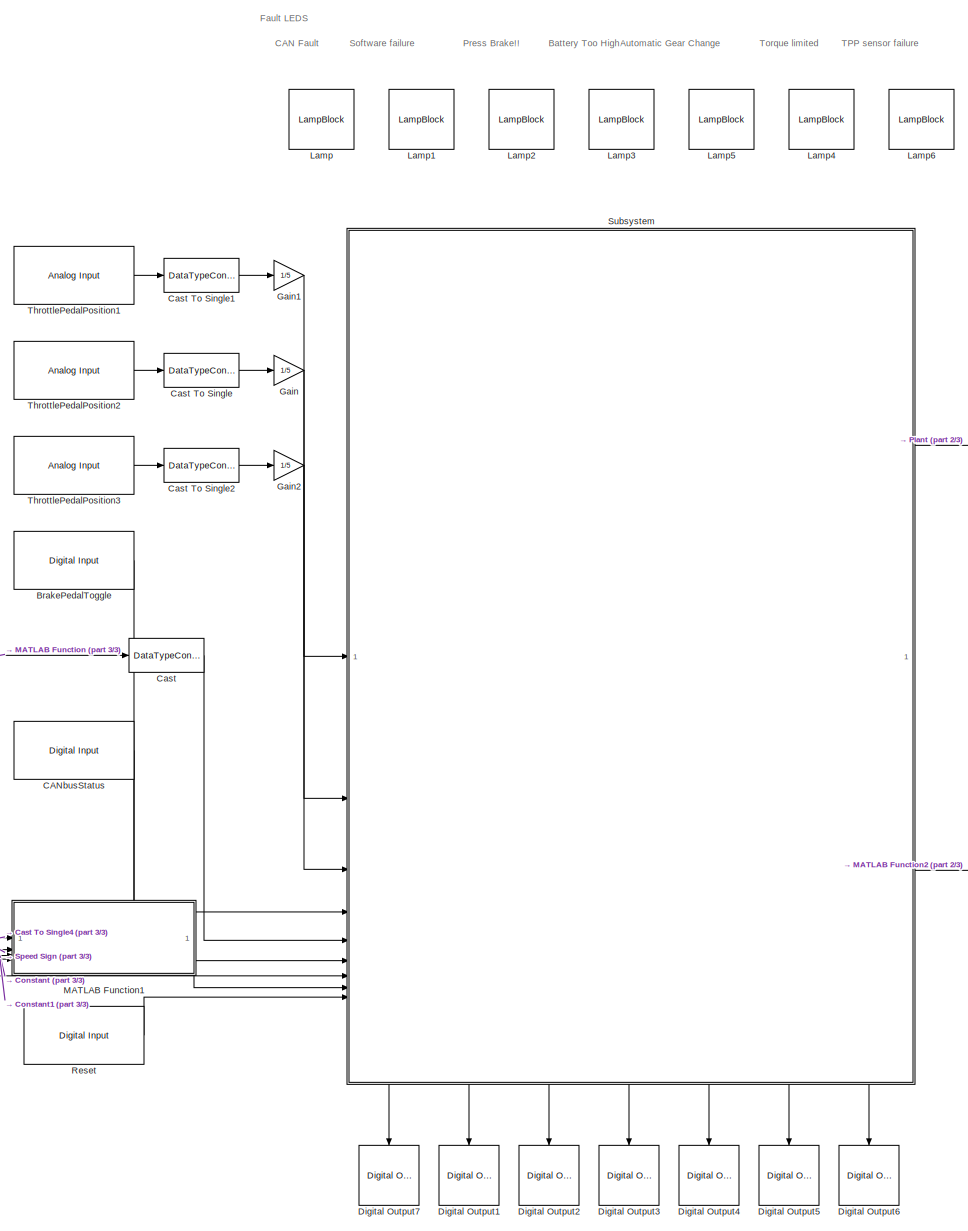
[diagram: root canvas - part 1/3, center side, full height]
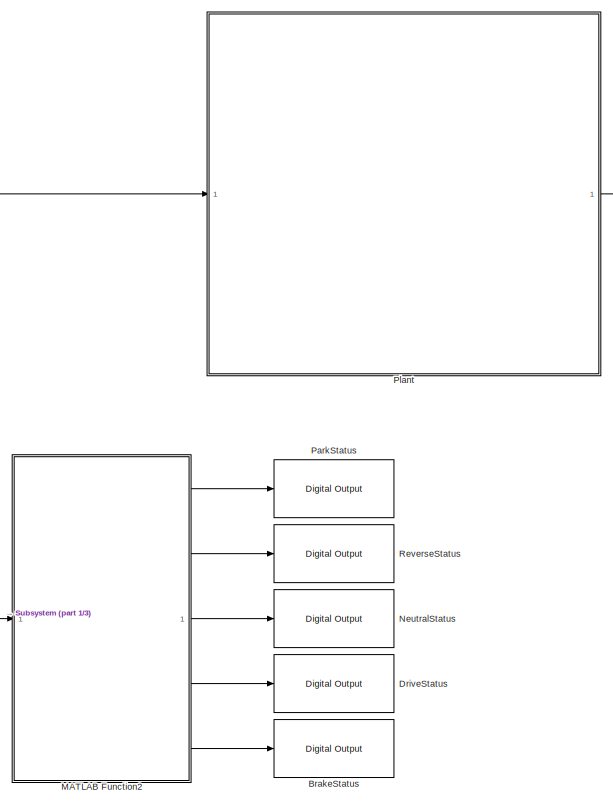
[diagram: root canvas - part 2/3, middle right region]
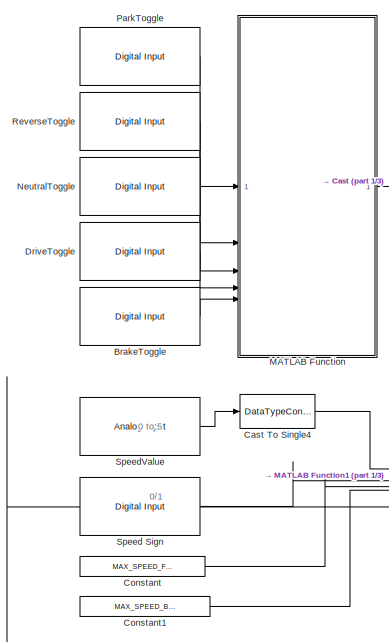
[diagram: root canvas - part 3/3, middle left region]
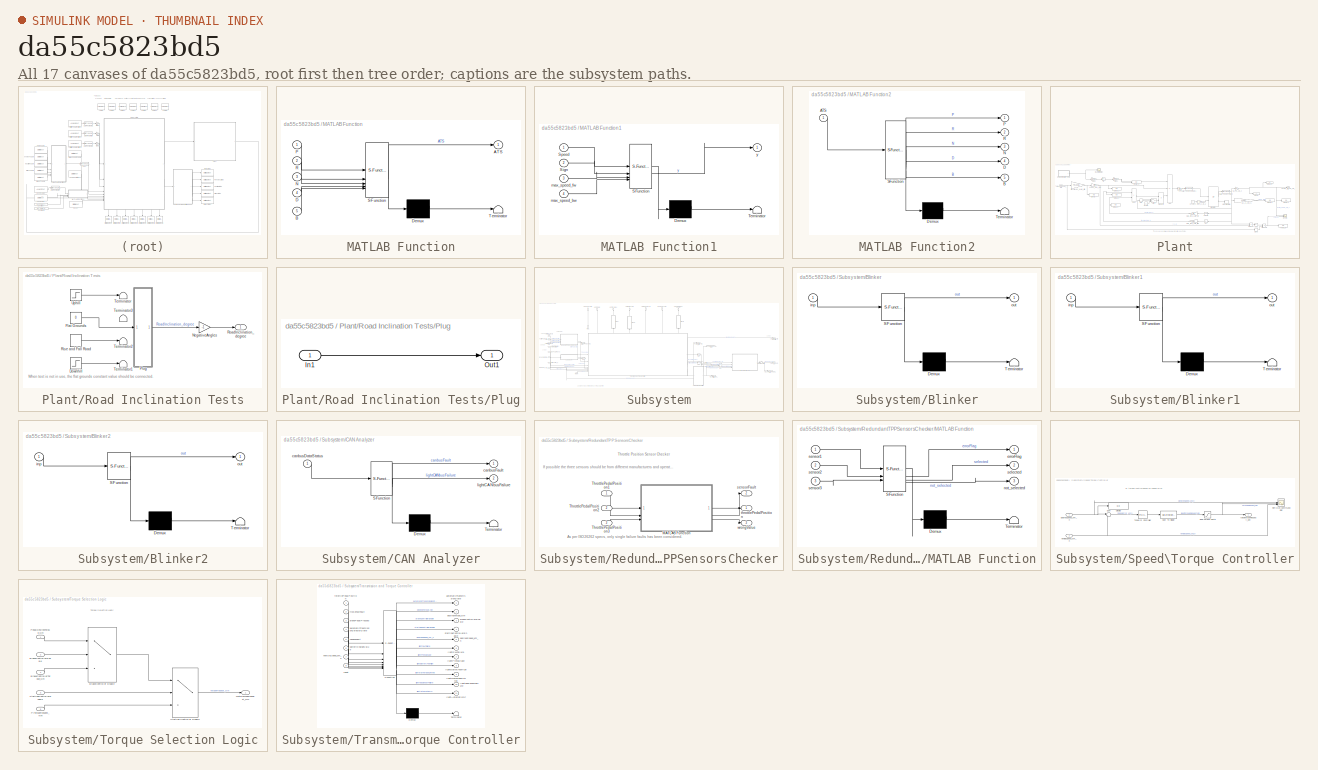
[diagram: thumbnail index - all 17 canvases of the model, root first then tree order]
MODEL slx_da55c5823bd5
KIND model
CONFIG AbsTol = auto
CONFIG EnableMultiTasking = on
CONFIG FixedStep = auto
CONFIG InitFcn = init_fn()
CONFIG MaxStep = auto
CONFIG MinStep = auto
CONFIG RelTol = 1e-3
CONFIG SampleTimeConstraint = Unconstrained
CONFIG SolverName = FixedStepAuto
CONFIG StartTime = 0.0
CONFIG StopTime = 100.0
BLOCK [Reference] BrakePedalToggle  REF=arduinolib/Digital Input
  SourceBlock = arduinolib/Digital Input
  SourceType = Arduino Digital Input
BLOCK [Reference] BrakeStatus  REF=arduinolib/Digital Output
  NameLocation = right
  SourceBlock = arduinolib/Digital Output
  SourceType = Arduino Digital Output
BLOCK [Reference] BrakeToggle  REF=arduinolib/Digital Input
  NameLocation = left
  SourceBlock = arduinolib/Digital Input
  SourceType = Arduino Digital Input
BLOCK [Reference] CANbusStatus  REF=arduinolib/Digital Input
  SourceBlock = arduinolib/Digital Input
  SourceType = Arduino Digital Input
BLOCK [DataTypeConversion] Cast
  OutDataTypeStr = Enum: TransmissionState
  RndMeth = Floor
  SaturateOnIntegerOverflow = off
BLOCK [DataTypeConversion] Cast To Single
  OutDataTypeStr = single
  RndMeth = Floor
  SaturateOnIntegerOverflow = off
BLOCK [DataTypeConversion] Cast To Single1
  OutDataTypeStr = single
  RndMeth = Floor
  SaturateOnIntegerOverflow = off
BLOCK [DataTypeConversion] Cast To Single2
  OutDataTypeStr = single
  RndMeth = Floor
  SaturateOnIntegerOverflow = off
BLOCK [DataTypeConversion] Cast To Single4
  OutDataTypeStr = single
  RndMeth = Floor
  SaturateOnIntegerOverflow = off
BLOCK [Constant] Constant
  OutDataTypeStr = single
  Value = MAX_SPEED_FORWARD
BLOCK [Constant] Constant1
  OutDataTypeStr = single
  Value = MAX_SPEED_BACKWARD
BLOCK [Reference] Digital Output1  REF=arduinolib/Digital Output
  SourceBlock = arduinolib/Digital Output
  SourceType = Arduino Digital Output
BLOCK [Reference] Digital Output2  REF=arduinolib/Digital Output
  SourceBlock = arduinolib/Digital Output
  SourceType = Arduino Digital Output
BLOCK [Reference] Digital Output3  REF=arduinolib/Digital Output
  SourceBlock = arduinolib/Digital Output
  SourceType = Arduino Digital Output
BLOCK [Reference] Digital Output4  REF=arduinolib/Digital Output
  SourceBlock = arduinolib/Digital Output
  SourceType = Arduino Digital Output
BLOCK [Reference] Digital Output5  REF=arduinolib/Digital Output
  SourceBlock = arduinolib/Digital Output
  SourceType = Arduino Digital Output
BLOCK [Reference] Digital Output6  REF=arduinolib/Digital Output
  SourceBlock = arduinolib/Digital Output
  SourceType = Arduino Digital Output
BLOCK [Reference] Digital Output7  REF=arduinolib/Digital Output
  SourceBlock = arduinolib/Digital Output
  SourceType = Arduino Digital Output
BLOCK [Reference] DriveStatus  REF=arduinolib/Digital Output
  NameLocation = right
  SourceBlock = arduinolib/Digital Output
  SourceType = Arduino Digital Output
BLOCK [Reference] DriveToggle  REF=arduinolib/Digital Input
  NameLocation = left
  SourceBlock = arduinolib/Digital Input
  SourceType = Arduino Digital Input
BLOCK [Gain] Gain
  Gain = 1/5
BLOCK [Gain] Gain1
  Gain = 1/5
BLOCK [Gain] Gain2
  Gain = 1/5
BLOCK [LampBlock] Lamp
  LabelPosition = Hide
BLOCK [LampBlock] Lamp1
  LabelPosition = Hide
BLOCK [LampBlock] Lamp2
  LabelPosition = Hide
BLOCK [LampBlock] Lamp3
  LabelPosition = Hide
BLOCK [LampBlock] Lamp4
  LabelPosition = Hide
BLOCK [LampBlock] Lamp5
  LabelPosition = Hide
BLOCK [LampBlock] Lamp6
  LabelPosition = Hide
BLOCK [SubSystem] MATLAB Function
  ErrorFcn = Stateflow.Translate.translate
  LibrarySourceBlock = simulink/User-Defined\nFunctions/MATLAB Function
  PermitHierarchicalResolution = ExplicitOnly
  SFBlockType = MATLAB Function
  TreatAsAtomicUnit = on
BLOCK [Demux] MATLAB Function/ Demux 
  Outputs = 1
BLOCK [S-Function] MATLAB Function/ SFunction 
  EnableBusSupport = on
  FunctionName = sf_sfun
  PortCounts = [5 2]
  SFcnIsStateOwnerBlock = off
  SFunctionDeploymentMode = off
  Tag = Stateflow S-Function 2
BLOCK [Terminator] MATLAB Function/ Terminator 
BLOCK [Outport] MATLAB Function/ATS
BLOCK [Inport] MATLAB Function/B
  Port = 5
BLOCK [Inport] MATLAB Function/D
  Port = 4
BLOCK [Inport] MATLAB Function/N
  Port = 3
BLOCK [Inport] MATLAB Function/P
BLOCK [Inport] MATLAB Function/R
  Port = 2
BLOCK [SubSystem] MATLAB Function1
  ErrorFcn = Stateflow.Translate.translate
  LibrarySourceBlock = simulink/User-Defined\nFunctions/MATLAB Function
  PermitHierarchicalResolution = ExplicitOnly
  SFBlockType = MATLAB Function
  TreatAsAtomicUnit = on
BLOCK [Demux] MATLAB Function1/ Demux 
  Outputs = 1
BLOCK [S-Function] MATLAB Function1/ SFunction 
  EnableBusSupport = on
  FunctionName = sf_sfun
  PortCounts = [4 2]
  SFcnIsStateOwnerBlock = off
  SFunctionDeploymentMode = off
  Tag = Stateflow S-Function 1
BLOCK [Terminator] MATLAB Function1/ Terminator 
BLOCK [Inport] MATLAB Function1/Sign
  Port = 2
BLOCK [Inport] MATLAB Function1/Speed
BLOCK [Inport] MATLAB Function1/max_speed_bw
  Port = 4
BLOCK [Inport] MATLAB Function1/max_speed_fw
  Port = 3
BLOCK [Outport] MATLAB Function1/y
BLOCK [SubSystem] MATLAB Function2
  ErrorFcn = Stateflow.Translate.translate
  LibrarySourceBlock = simulink/User-Defined\nFunctions/MATLAB Function
  PermitHierarchicalResolution = ExplicitOnly
  SFBlockType = MATLAB Function
  TreatAsAtomicUnit = on
BLOCK [Demux] MATLAB Function2/ Demux 
  Outputs = 1
BLOCK [S-Function] MATLAB Function2/ SFunction 
  EnableBusSupport = on
  FunctionName = sf_sfun
  PortCounts = [1 6]
  SFcnIsStateOwnerBlock = off
  SFunctionDeploymentMode = off
  Tag = Stateflow S-Function 3
BLOCK [Terminator] MATLAB Function2/ Terminator 
BLOCK [Inport] MATLAB Function2/ATS
BLOCK [Outport] MATLAB Function2/B
  Port = 5
BLOCK [Outport] MATLAB Function2/D
  Port = 4
BLOCK [Outport] MATLAB Function2/N
  Port = 3
BLOCK [Outport] MATLAB Function2/P
BLOCK [Outport] MATLAB Function2/R
  Port = 2
BLOCK [Reference] NeutralStatus  REF=arduinolib/Digital Output
  NameLocation = right
  SourceBlock = arduinolib/Digital Output
  SourceType = Arduino Digital Output
BLOCK [Reference] NeutralToggle  REF=arduinolib/Digital Input
  NameLocation = left
  SourceBlock = arduinolib/Digital Input
  SourceType = Arduino Digital Input
BLOCK [Reference] ParkStatus  REF=arduinolib/Digital Output
  NameLocation = right
  SourceBlock = arduinolib/Digital Output
  SourceType = Arduino Digital Output
BLOCK [Reference] ParkToggle  REF=arduinolib/Digital Input
  NameLocation = left
  SourceBlock = arduinolib/Digital Input
  SourceType = Arduino Digital Input
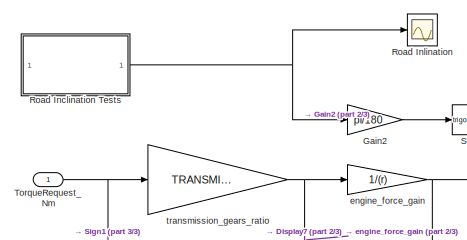
[diagram: Plant - part 1/3, top left region]
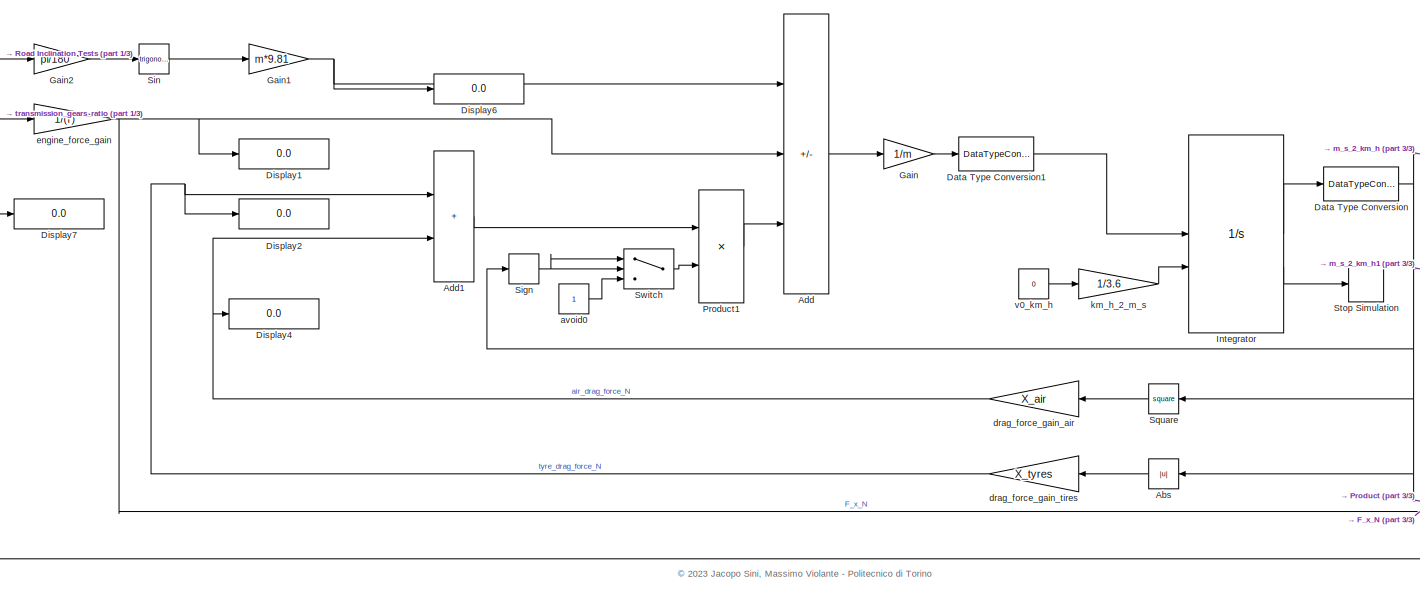
[diagram: Plant - part 2/3, center side, full height]
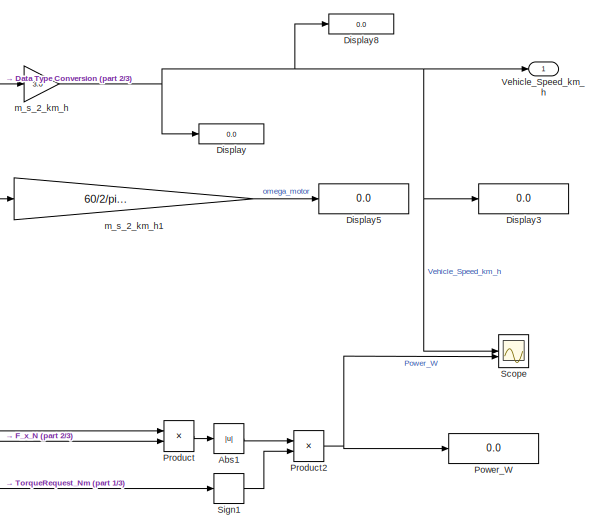
[diagram: Plant - part 3/3, right side, full height]
BLOCK [SubSystem] Plant
BLOCK [Abs] Plant/Abs
  NameLocation = top
  SaturateOnIntegerOverflow = off
BLOCK [Abs] Plant/Abs1
  SaturateOnIntegerOverflow = off
BLOCK [Sum] Plant/Add
  IconShape = rectangular
  Inputs = ++-
BLOCK [Sum] Plant/Add1
  IconShape = rectangular
BLOCK [DataTypeConversion] Plant/Data Type Conversion
  LockScale = on
  OutDataTypeStr = single
  RndMeth = Floor
  SaturateOnIntegerOverflow = off
BLOCK [DataTypeConversion] Plant/Data Type Conversion1
  LockScale = on
  OutDataTypeStr = double
  RndMeth = Floor
  SaturateOnIntegerOverflow = off
BLOCK [Display] Plant/Display
  Decimation = 1
BLOCK [Display] Plant/Display1
  Decimation = 1
  Format = bank
BLOCK [Display] Plant/Display2
  Decimation = 1
  Format = bank
BLOCK [Display] Plant/Display3
  Decimation = 1
  Format = bank
BLOCK [Display] Plant/Display4
  Decimation = 1
  Format = bank
BLOCK [Display] Plant/Display5
  Decimation = 1
  Format = bank
BLOCK [Display] Plant/Display6
  Decimation = 1
  Format = bank
BLOCK [Display] Plant/Display7
  Decimation = 1
  Format = bank
BLOCK [Display] Plant/Display8
  Decimation = 1
BLOCK [Gain] Plant/Gain
  Gain = 1/m
BLOCK [Gain] Plant/Gain1
  Gain = m*9.81
BLOCK [Gain] Plant/Gain2
  Gain = pi/180
BLOCK [Integrator] Plant/Integrator
  ContinuousStateAttributes = 'vehicle_speed'
  InitialConditionSource = external
  LimitOutput = on
  LowerSaturationLimit = -MAX_SPEED_BACKWARD/3.6
  ShowSaturationPort = on
  UpperSaturationLimit = MAX_SPEED_FORWARD/3.6
BLOCK [Display] Plant/Power_W
  Decimation = 1
  Format = bank
BLOCK [Product] Plant/Product
BLOCK [Product] Plant/Product1
BLOCK [Product] Plant/Product2
BLOCK [SubSystem] Plant/Road Inclination Tests
BLOCK [Step] Plant/Road Inclination Tests/Downhill
  After = -4
  SampleTime = 0
  Time = 3
BLOCK [Constant] Plant/Road Inclination Tests/Flat Grounds
  Value = 0
BLOCK [Gain] Plant/Road Inclination Tests/NegativeAngles
  Gain = -1
BLOCK [SubSystem] Plant/Road Inclination Tests/Plug
BLOCK [Inport] Plant/Road Inclination Tests/Plug/In1
BLOCK [Outport] Plant/Road Inclination Tests/Plug/Out1
BLOCK [DiscretePulseGenerator] Plant/Road Inclination Tests/Rise and Fall Road
  Amplitude = 0
  PhaseDelay = 5
  PulseType = Time based
  PulseWidth = 50
BLOCK [Outport] Plant/Road Inclination Tests/RoadInclination_degree
BLOCK [Terminator] Plant/Road Inclination Tests/Terminator
BLOCK [Terminator] Plant/Road Inclination Tests/Terminator1
BLOCK [Terminator] Plant/Road Inclination Tests/Terminator2
BLOCK [Terminator] Plant/Road Inclination Tests/Terminator3
BLOCK [Step] Plant/Road Inclination Tests/Uphill
  After = 10
  SampleTime = 0
  Time = 30
BLOCK [Scope] Plant/Road Inlination
  Floating = off
  NumInputPorts = 1
  ScopeSpecificationString = Simulink.scopes.TimeScopeBlockCfg('CurrentConfiguration', extmgr.ConfigurationSet(extmgr.Configuration('Core','General UI',true),extmgr.Configuration('Core','Source UI',true),extmgr.Configuration('Sources','WiredSimulink',true,'DataLoggingVariableName','ScopeData1'),extmgr.Configuration('Visuals','Time Domain',true,'SerializedDisplays',{struct('MinYLimReal','-1.00000','MaxYLimReal','1.00000','YLab...<+1405ch>
BLOCK [Scope] Plant/Scope
  Floating = off
  NumInputPorts = 2
  ScopeSpecificationString = Simulink.scopes.TimeScopeBlockCfg('CurrentConfiguration', extmgr.ConfigurationSet(extmgr.Configuration('Core','General UI',true),extmgr.Configuration('Core','Source UI',true),extmgr.Configuration('Sources','WiredSimulink',true,'DataLoggingVariableName','ScopeData2'),extmgr.Configuration('Visuals','Time Domain',true,'SerializedDisplays',{struct('MinYLimReal','-33.59273','MaxYLimReal','103.21572','Y...<+2004ch>
BLOCK [Signum] Plant/Sign
  ZeroCross = off
BLOCK [Signum] Plant/Sign1
  ZeroCross = off
BLOCK [Trigonometry] Plant/Sin
  OutputSignalType = real
BLOCK [Math] Plant/Square
  NameLocation = top
  Operator = square
BLOCK [Stop] Plant/Stop Simulation
BLOCK [Switch] Plant/Switch
  Criteria = u2 ~= 0
  InputSameDT = off
  SaturateOnIntegerOverflow = off
BLOCK [Inport] Plant/TorqueRequest_Nm
  OutDataTypeStr = single
BLOCK [Outport] Plant/Vehicle_Speed_km_h
  OutDataTypeStr = single
  Unit = km/h
BLOCK [Constant] Plant/avoid0
  OutDataTypeStr = double
BLOCK [Gain] Plant/drag_force_gain_air
  Gain = X_air
  NameLocation = top
BLOCK [Gain] Plant/drag_force_gain_tires
  Gain = X_tyres
  NameLocation = top
BLOCK [Gain] Plant/engine_force_gain
  Gain = 1/(r)
BLOCK [Gain] Plant/km_h_2_m_s
  Gain = 1/3.6
BLOCK [Gain] Plant/m_s_2_km_h
  Gain = 3.6
BLOCK [Gain] Plant/m_s_2_km_h1
  Gain = 60/2/pi/r*TRANSMISSION_RATIO
BLOCK [Gain] Plant/transmission_gears_ratio
  Gain = TRANSMISSION_RATIO
BLOCK [Constant] Plant/v0_km_h
  OutDataTypeStr = double
  Value = 0
BLOCK [Reference] Reset  REF=arduinolib/Digital Input
  SourceBlock = arduinolib/Digital Input
  SourceType = Arduino Digital Input
BLOCK [Reference] ReverseStatus  REF=arduinolib/Digital Output
  NameLocation = right
  SourceBlock = arduinolib/Digital Output
  SourceType = Arduino Digital Output
BLOCK [Reference] ReverseToggle  REF=arduinolib/Digital Input
  NameLocation = left
  SourceBlock = arduinolib/Digital Input
  SourceType = Arduino Digital Input
BLOCK [Reference] Speed Sign  REF=arduinolib/Digital Input
  SourceBlock = arduinolib/Digital Input
  SourceType = Arduino Digital Input
BLOCK [Reference] SpeedValue  REF=arduinolib/Analog Input
  SourceBlock = arduinolib/Analog Input
  SourceType = Arduino Analog Input
BLOCK [SubSystem] Subsystem
  PortSchema = {"entries":[{"content":{"sides":[{"content":{"connectorIds":["In1","In2","In3","In4","In5","In6","In7","In8","In9"]},"type":"ConnectorPlacement.EquallySpacedRectSide","uuid":"240cc9ec-2ba8-4d42-9768-bf8b5b2cd18c"},{"content":{"connectorIds":["Out1","Out2"],"side":"RIGHT"},"type":"ConnectorPlacement.EquallySpacedRectSide","uuid":"79e5a8d1-1f90-4926-ab4a-0fddf072b8d0"},{"content":{"connectorIds":[],...<+487ch>
BLOCK [Outport] Subsystem/AutomaticTransmissionState
  OutDataTypeStr = Enum: TransmissionState
  Port = 2
BLOCK [Inport] Subsystem/AutomaticTrasmissionSelectorState
  OutDataTypeStr = Enum: TransmissionState
  Port = 5
BLOCK [Inport] Subsystem/BatteryCharge_%
  OutDataTypeStr = single
  Port = 8
  Unit = km/h
BLOCK [SubSystem] Subsystem/Blinker
  ErrorFcn = Stateflow.Translate.translate
  NameLocation = right
  PermitHierarchicalResolution = ExplicitOnly
  SFBlockType = Chart
  TreatAsAtomicUnit = on
BLOCK [Demux] Subsystem/Blinker/ Demux 
  Outputs = 1
BLOCK [S-Function] Subsystem/Blinker/ SFunction 
  EnableBusSupport = on
  FunctionName = sf_sfun
  PortCounts = [1 2]
  SFcnIsStateOwnerBlock = off
  SFunctionDeploymentMode = off
  Tag = Stateflow S-Function 5
BLOCK [Terminator] Subsystem/Blinker/ Terminator 
BLOCK [Inport] Subsystem/Blinker/inp
BLOCK [Outport] Subsystem/Blinker/out
BLOCK [SubSystem] Subsystem/Blinker1
  ErrorFcn = Stateflow.Translate.translate
  NameLocation = right
  PermitHierarchicalResolution = ExplicitOnly
  SFBlockType = Chart
  TreatAsAtomicUnit = on
BLOCK [Demux] Subsystem/Blinker1/ Demux 
  Outputs = 1
BLOCK [S-Function] Subsystem/Blinker1/ SFunction 
  EnableBusSupport = on
  FunctionName = sf_sfun
  PortCounts = [1 2]
  SFcnIsStateOwnerBlock = off
  SFunctionDeploymentMode = off
  Tag = Stateflow S-Function 6
BLOCK [Terminator] Subsystem/Blinker1/ Terminator 
BLOCK [Inport] Subsystem/Blinker1/inp
BLOCK [Outport] Subsystem/Blinker1/out
BLOCK [SubSystem] Subsystem/Blinker2
  ErrorFcn = Stateflow.Translate.translate
  NameLocation = right
  PermitHierarchicalResolution = ExplicitOnly
  SFBlockType = Chart
  TreatAsAtomicUnit = on
BLOCK [Demux] Subsystem/Blinker2/ Demux 
  Outputs = 1
BLOCK [S-Function] Subsystem/Blinker2/ SFunction 
  EnableBusSupport = on
  FunctionName = sf_sfun
  PortCounts = [1 2]
  SFcnIsStateOwnerBlock = off
  SFunctionDeploymentMode = off
  Tag = Stateflow S-Function 7
BLOCK [Terminator] Subsystem/Blinker2/ Terminator 
BLOCK [Inport] Subsystem/Blinker2/inp
BLOCK [Outport] Subsystem/Blinker2/out
BLOCK [Inport] Subsystem/BrakePedalPressed
  OutDataTypeStr = boolean
  Port = 4
BLOCK [SubSystem] Subsystem/CAN Analyzer
  ErrorFcn = Stateflow.Translate.translate
  PermitHierarchicalResolution = ExplicitOnly
  SFBlockType = Chart
  TreatAsAtomicUnit = on
BLOCK [Demux] Subsystem/CAN Analyzer/ Demux 
  Outputs = 1
BLOCK [S-Function] Subsystem/CAN Analyzer/ SFunction 
  EnableBusSupport = on
  FunctionName = sf_sfun
  PortCounts = [1 3]
  SFcnIsStateOwnerBlock = off
  SFunctionDeploymentMode = off
  Tag = Stateflow S-Function 8
BLOCK [Terminator] Subsystem/CAN Analyzer/ Terminator 
BLOCK [Inport] Subsystem/CAN Analyzer/canbusDataStatus
BLOCK [Outport] Subsystem/CAN Analyzer/canbusFault
BLOCK [Outport] Subsystem/CAN Analyzer/lightCANbusFailure
  Port = 2
BLOCK [Inport] Subsystem/CanbusDataStatus
  OutDataTypeStr = boolean
  Port = 6
  Unit = km/h
BLOCK [From] Subsystem/From
  GotoTag = PedalDesiredTorque
BLOCK [From] Subsystem/From1
  GotoTag = L
  NameLocation = right
BLOCK [Goto] Subsystem/Goto
  GotoTag = PedalDesiredTorque
BLOCK [Goto] Subsystem/Goto1
  GotoTag = L
BLOCK [Outport] Subsystem/LightAutomaticGearChange
  NameLocation = top
  OutDataTypeStr = boolean
  Port = 9
BLOCK [Outport] Subsystem/LightBatteryTooHigh
  NameLocation = top
  OutDataTypeStr = boolean
  Port = 6
BLOCK [Outport] Subsystem/LightCANbusFailure
  NameLocation = top
  OutDataTypeStr = boolean
  Port = 3
BLOCK [Outport] Subsystem/LightMaxTorqueLimited
  NameLocation = top
  OutDataTypeStr = boolean
  Port = 7
BLOCK [Outport] Subsystem/LightPressBrake
  NameLocation = top
  OutDataTypeStr = boolean
  Port = 5
BLOCK [Outport] Subsystem/LightSWFailure
  NameLocation = top
  OutDataTypeStr = boolean
  Port = 4
BLOCK [Outport] Subsystem/LightTPPSensorFailure
  NameLocation = top
  OutDataTypeStr = boolean
  Port = 8
BLOCK [MinMax] Subsystem/Max
  Function = max
  Inputs = 2
BLOCK [Logic] Subsystem/NOT
  AllPortsSameDT = off
  IconShape = distinctive
  Operator = NOT
  OutDataTypeStr = boolean
BLOCK [Logic] Subsystem/NOT1
  AllPortsSameDT = off
  IconShape = distinctive
  Operator = NOT
  OutDataTypeStr = boolean
BLOCK [Display] Subsystem/PIControllerTorque_Nm
  Decimation = 1
BLOCK [Display] Subsystem/PedalDesiredTorque_Nm
  Decimation = 1
BLOCK [Saturate] Subsystem/Real Torque Limits
  LowerLimit = -MAX_TORQUE_REVERSE
  UpperLimit = MAX_TORQUE
BLOCK [SubSystem] Subsystem/RedundantTPPSensorsChecker
  NameLocation = top
BLOCK [SubSystem] Subsystem/RedundantTPPSensorsChecker/MATLAB Function
  ErrorFcn = Stateflow.Translate.translate
  LibrarySourceBlock = simulink/User-Defined\nFunctions/MATLAB Function
  PermitHierarchicalResolution = ExplicitOnly
  SFBlockType = MATLAB Function
  TreatAsAtomicUnit = on
BLOCK [Demux] Subsystem/RedundantTPPSensorsChecker/MATLAB Function/ Demux 
  Outputs = 1
BLOCK [S-Function] Subsystem/RedundantTPPSensorsChecker/MATLAB Function/ SFunction 
  EnableBusSupport = on
  FunctionName = sf_sfun
  PortCounts = [3 4]
  SFcnIsStateOwnerBlock = off
  SFunctionDeploymentMode = off
  Tag = Stateflow S-Function 9
BLOCK [Terminator] Subsystem/RedundantTPPSensorsChecker/MATLAB Function/ Terminator 
BLOCK [Outport] Subsystem/RedundantTPPSensorsChecker/MATLAB Function/errorFlag
BLOCK [Outport] Subsystem/RedundantTPPSensorsChecker/MATLAB Function/not_selected
  Port = 3
BLOCK [Outport] Subsystem/RedundantTPPSensorsChecker/MATLAB Function/selected
  Port = 2
BLOCK [Inport] Subsystem/RedundantTPPSensorsChecker/MATLAB Function/sensor1
BLOCK [Inport] Subsystem/RedundantTPPSensorsChecker/MATLAB Function/sensor2
  Port = 2
BLOCK [Inport] Subsystem/RedundantTPPSensorsChecker/MATLAB Function/sensor3
  Port = 3
BLOCK [Inport] Subsystem/RedundantTPPSensorsChecker/ThrottlePedalPosition1
BLOCK [Inport] Subsystem/RedundantTPPSensorsChecker/ThrottlePedalPosition2
  Port = 2
BLOCK [Inport] Subsystem/RedundantTPPSensorsChecker/ThrottlePedalPosition3
  Port = 3
BLOCK [Outport] Subsystem/RedundantTPPSensorsChecker/sensorFault
  OutDataTypeStr = boolean
  Port = 2
BLOCK [Outport] Subsystem/RedundantTPPSensorsChecker/throttlePedalPosition
BLOCK [Outport] Subsystem/RedundantTPPSensorsChecker/wrongValue
  Port = 3
BLOCK [Inport] Subsystem/Reset
  OutDataTypeStr = boolean
  Port = 9
  Unit = km/h
BLOCK [SubSystem] Subsystem/Speed\Torque Controller
BLOCK [DataTypeConversion] Subsystem/Speed\Torque Controller/Cast To Single
  OutDataTypeStr = single
  RndMeth = Floor
  SaturateOnIntegerOverflow = off
BLOCK [Inport] Subsystem/Speed\Torque Controller/DesiredSpeed_km_h
BLOCK [Display] Subsystem/Speed\Torque Controller/Display
  Decimation = 1
BLOCK [Outport] Subsystem/Speed\Torque Controller/IdealTorqueRequest_Nm
BLOCK [Saturate] Subsystem/Speed\Torque Controller/Real Torque Limits
  LowerLimit = -MAX_TORQUE_REVERSE
  UpperLimit = MAX_TORQUE
BLOCK [Scope] Subsystem/Speed\Torque Controller/Ref\Out\Command Plot
  Floating = off
  NumInputPorts = 3
  ScopeSpecificationString = Simulink.scopes.TimeScopeBlockCfg('CurrentConfiguration', extmgr.ConfigurationSet(extmgr.Configuration('Core','General UI',true),extmgr.Configuration('Core','Source UI',true),extmgr.Configuration('Sources','WiredSimulink',true,'DataLoggingVariableName','ScopeData2'),extmgr.Configuration('Visuals','Time Domain',true,'SerializedDisplays',{struct('MinYLimReal','-0.97538','MaxYLimReal','81.85781','YLa...<+1531ch>
BLOCK [Sum] Subsystem/Speed\Torque Controller/Sum
  Inputs = |+-
BLOCK [Reference] Subsystem/Speed\Torque Controller/Tuned PI Controller  REF=slpidlib/PID Controller
  LibrarySourceBlock = simulink/Continuous/PID Controller
  SourceBlock = slpidlib/PID Controller
  SourceType = PID 1dof
BLOCK [Inport] Subsystem/Speed\Torque Controller/VehicleSpeed_km_h
  Port = 2
BLOCK [Inport] Subsystem/ThrottlePedalPosition1
  OutDataTypeStr = single
  Port = 2
BLOCK [Inport] Subsystem/ThrottlePedalPosition2
  OutDataTypeStr = single
BLOCK [Inport] Subsystem/ThrottlePedalPosition3
  OutDataTypeStr = single
  Port = 3
BLOCK [SubSystem] Subsystem/Torque Selection Logic
BLOCK [Switch] Subsystem/Torque Selection Logic/BrakeController Enable
  Criteria = u2 > Threshold
  InputSameDT = off
  SaturateOnIntegerOverflow = off
BLOCK [Inport] Subsystem/Torque Selection Logic/BrakeControllerEnable
  Port = 2
BLOCK [Inport] Subsystem/Torque Selection Logic/BrakeControllerTorque_Nm
  Port = 4
BLOCK [Outport] Subsystem/Torque Selection Logic/MotorTorqueRequest_Nm
BLOCK [Inport] Subsystem/Torque Selection Logic/PITorqueRequest_Nm
  Port = 5
BLOCK [Inport] Subsystem/Torque Selection Logic/PedalDesiredTorque_Nm
BLOCK [Switch] Subsystem/Torque Selection Logic/Starting Controller Enable
  Criteria = u2 > Threshold
  InputSameDT = off
  SaturateOnIntegerOverflow = off
BLOCK [Inport] Subsystem/Torque Selection Logic/StartingControllerEnable
  Port = 3
BLOCK [Display] Subsystem/TorqueRequestToMotor_Nm
  Decimation = 1
BLOCK [Outport] Subsystem/TorqueRequest_Nm
  OutDataTypeStr = single
  Unit = N*m
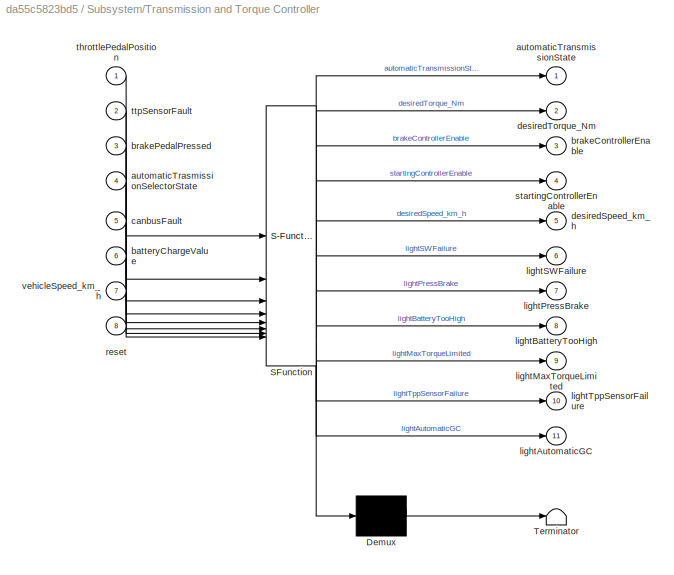
BLOCK [SubSystem] Subsystem/Transmission and Torque Controller
  ErrorFcn = Stateflow.Translate.translate
  PermitHierarchicalResolution = ExplicitOnly
  PortSchema = {"entries":[{"content":{"sides":[{"content":{"connectorIds":["In1","In2","In4","In3","In5","In6","In7","In8"]},"type":"ConnectorPlacement.EquallySpacedRectSide","uuid":"0c8aad20-bedd-441c-a5c9-bebe8b868021"},{"content":{"connectorIds":["Out1","Out2","Out3","Out4","Out5"],"side":"RIGHT"},"type":"ConnectorPlacement.EquallySpacedRectSide","uuid":"1881f9b3-9ea6-444d-9c49-eff5d4926a82"},{"content":{"co...<+353ch>
  SFBlockType = Chart
  TreatAsAtomicUnit = on
BLOCK [Demux] Subsystem/Transmission and Torque Controller/ Demux 
  Outputs = 1
BLOCK [S-Function] Subsystem/Transmission and Torque Controller/ SFunction 
  EnableBusSupport = on
  FunctionName = sf_sfun
  Parameters = MAX_SPEED_BACKWARD,MAX_SPEED_FORWARD,MAX_TORQUE,MAX_TORQUE_REVERSE
  PortCounts = [8 12]
  SFcnIsStateOwnerBlock = off
  SFunctionDeploymentMode = off
  Tag = Stateflow S-Function 10
BLOCK [Terminator] Subsystem/Transmission and Torque Controller/ Terminator 
BLOCK [Outport] Subsystem/Transmission and Torque Controller/automaticTransmissionState
BLOCK [Inport] Subsystem/Transmission and Torque Controller/automaticTrasmissionSelectorState
  Port = 4
BLOCK [Inport] Subsystem/Transmission and Torque Controller/batteryChargeValue
  Port = 6
BLOCK [Outport] Subsystem/Transmission and Torque Controller/brakeControllerEnable
  Port = 3
BLOCK [Inport] Subsystem/Transmission and Torque Controller/brakePedalPressed
  Port = 3
BLOCK [Inport] Subsystem/Transmission and Torque Controller/canbusFault
  Port = 5
BLOCK [Outport] Subsystem/Transmission and Torque Controller/desiredSpeed_km_h
  Port = 5
BLOCK [Outport] Subsystem/Transmission and Torque Controller/desiredTorque_Nm
  Port = 2
BLOCK [Outport] Subsystem/Transmission and Torque Controller/lightAutomaticGC
  Port = 11
BLOCK [Outport] Subsystem/Transmission and Torque Controller/lightBatteryTooHigh
  Port = 8
BLOCK [Outport] Subsystem/Transmission and Torque Controller/lightMaxTorqueLimited
  Port = 9
BLOCK [Outport] Subsystem/Transmission and Torque Controller/lightPressBrake
  Port = 7
BLOCK [Outport] Subsystem/Transmission and Torque Controller/lightSWFailure
  Port = 6
BLOCK [Outport] Subsystem/Transmission and Torque Controller/lightTppSensorFailure
  Port = 10
BLOCK [Inport] Subsystem/Transmission and Torque Controller/reset
  Port = 8
BLOCK [Outport] Subsystem/Transmission and Torque Controller/startingControllerEnable
  Port = 4
BLOCK [Inport] Subsystem/Transmission and Torque Controller/throttlePedalPosition
BLOCK [Inport] Subsystem/Transmission and Torque Controller/ttpSensorFault
  Port = 2
BLOCK [Inport] Subsystem/Transmission and Torque Controller/vehicleSpeed_km_h
  Port = 7
BLOCK [Inport] Subsystem/VehicleSpeed_km_h
  OutDataTypeStr = single
  Port = 7
  Unit = km/h
BLOCK [Display] Subsystem/wrongPPSensorValue
  Decimation = 1
BLOCK [Reference] ThrottlePedalPosition1  REF=arduinolib/Analog Input
  SourceBlock = arduinolib/Analog Input
  SourceType = Arduino Analog Input
BLOCK [Reference] ThrottlePedalPosition2  REF=arduinolib/Analog Input
  SourceBlock = arduinolib/Analog Input
  SourceType = Arduino Analog Input
BLOCK [Reference] ThrottlePedalPosition3  REF=arduinolib/Analog Input
  SourceBlock = arduinolib/Analog Input
  SourceType = Arduino Analog Input
ANNOTATION (root): 0 to 5
ANNOTATION (root): 0/1
ANNOTATION (root): Automatic Gear Change
ANNOTATION (root): Battery Too High
ANNOTATION (root): CAN Fault
ANNOTATION (root): Fault LEDS
ANNOTATION (root): Press Brake!!
ANNOTATION (root): Software failure
ANNOTATION (root): TPP sensor failure
ANNOTATION (root): Torque limited
ANNOTATION Plant: <copyright redacted>
ANNOTATION Plant/Road Inclination Tests: When test is not in use, the flat grounds constant value should be connected.
ANNOTATION Subsystem: "One pedal acceleration/braking system" Controller
ANNOTATION Subsystem: AT Selector
ANNOTATION Subsystem: CANbus
ANNOTATION Subsystem: Fault Detection
ANNOTATION Subsystem: TPP Sensors
ANNOTATION Subsystem/RedundantTPPSensorsChecker: Throttle Position Sensor Checker
ANNOTATION Subsystem/RedundantTPPSensorsChecker: As per ISO26262 specs, only single failure faults has been considered.
ANNOTATION Subsystem/RedundantTPPSensorsChecker: If possible the three sensors should be from different manufacturers and operate with different technologies.
ANNOTATION Subsystem/Speed\Torque Controller: PI torque control based on speed error
ANNOTATION Subsystem/Torque Selection Logic: Torque Selection Logic
LINE BrakePedalToggle:1 -> Subsystem:4
LINE BrakeToggle:1 -> MATLAB Function:5
LINE CANbusStatus:1 -> Subsystem:6
LINE Cast To Single1:1 -> Gain1:1
LINE Cast To Single2:1 -> Gain2:1
LINE Cast To Single4:1 -> MATLAB Function1:1
LINE Cast To Single:1 -> Gain:1
LINE Cast:1 -> Subsystem:5
LINE Constant1:1 -> MATLAB Function1:4
LINE Constant:1 -> MATLAB Function1:3
LINE DriveToggle:1 -> MATLAB Function:4
LINE Gain1:1 -> Subsystem:1
LINE Gain2:1 -> Subsystem:3
LINE Gain:1 -> Subsystem:2
LINE MATLAB Function1:1 -> Subsystem:8
LINE MATLAB Function2:1 -> ParkStatus:1
LINE MATLAB Function2:2 -> ReverseStatus:1
LINE MATLAB Function2:3 -> NeutralStatus:1
LINE MATLAB Function2:4 -> DriveStatus:1
LINE MATLAB Function2:5 -> BrakeStatus:1
LINE MATLAB Function:1 -> Cast:1
LINE NeutralToggle:1 -> MATLAB Function:3
LINE ParkToggle:1 -> MATLAB Function:1
LINE Plant/Abs1:1 -> Plant/Product2:1
LINE Plant/Abs:1 -> Plant/drag_force_gain_tires:1
LINE Plant/Add1:1 -> Plant/Product1:1
LINE Plant/Add:1 -> Plant/Gain:1
LINE Plant/Data Type Conversion1:1 -> Plant/Integrator:1
NET Plant/Data Type Conversion:1 -> Plant/Abs:1, Plant/Product:1, Plant/Sign:1, Plant/Square:1, Plant/m_s_2_km_h1:1, Plant/m_s_2_km_h:1
NET Plant/Gain1:1 -> Plant/Add:1, Plant/Display6:1
LINE Plant/Gain2:1 -> Plant/Sin:1
LINE Plant/Gain:1 -> Plant/Data Type Conversion1:1
LINE Plant/Integrator:1 -> Plant/Data Type Conversion:1
LINE Plant/Integrator:2 -> Plant/Stop Simulation:1
LINE Plant/Product1:1 -> Plant/Add:3
NET Plant/Product2:1 -> Plant/Power_W:1, Plant/Scope:2
LINE Plant/Product:1 -> Plant/Abs1:1
LINE Plant/Road Inclination Tests/Downhill:1 -> Plant/Road Inclination Tests/Terminator1:1
LINE Plant/Road Inclination Tests/Flat Grounds:1 -> Plant/Road Inclination Tests/Plug:1
LINE Plant/Road Inclination Tests/NegativeAngles:1 -> Plant/Road Inclination Tests/RoadInclination_degree:1
LINE Plant/Road Inclination Tests/Plug/In1:1 -> Plant/Road Inclination Tests/Plug/Out1:1
LINE Plant/Road Inclination Tests/Plug:1 -> Plant/Road Inclination Tests/NegativeAngles:1
LINE Plant/Road Inclination Tests/Rise and Fall Road:1 -> Plant/Road Inclination Tests/Terminator2:1
LINE Plant/Road Inclination Tests/Uphill:1 -> Plant/Road Inclination Tests/Terminator:1
NET Plant/Road Inclination Tests:1 -> Plant/Gain2:1, Plant/Road Inlination:1
LINE Plant/Sign1:1 -> Plant/Product2:2
NET Plant/Sign:1 -> Plant/Switch:1, Plant/Switch:2
LINE Plant/Sin:1 -> Plant/Gain1:1
LINE Plant/Square:1 -> Plant/drag_force_gain_air:1
LINE Plant/Switch:1 -> Plant/Product1:2
NET Plant/TorqueRequest_Nm:1 -> Plant/Sign1:1, Plant/transmission_gears_ratio:1
LINE Plant/avoid0:1 -> Plant/Switch:3
NET Plant/drag_force_gain_air:1 -> Plant/Add1:2, Plant/Display4:1
NET Plant/drag_force_gain_tires:1 -> Plant/Add1:1, Plant/Display2:1
NET Plant/engine_force_gain:1 -> Plant/Add:2, Plant/Display1:1, Plant/Product:2
LINE Plant/km_h_2_m_s:1 -> Plant/Integrator:2
LINE Plant/m_s_2_km_h1:1 -> Plant/Display5:1
NET Plant/m_s_2_km_h:1 -> Plant/Display3:1, Plant/Display8:1, Plant/Display:1, Plant/Scope:1, Plant/Vehicle_Speed_km_h:1
NET Plant/transmission_gears_ratio:1 -> Plant/Display7:1, Plant/engine_force_gain:1
LINE Plant/v0_km_h:1 -> Plant/km_h_2_m_s:1
LINE Plant:1 -> Subsystem:7
LINE Reset:1 -> Subsystem:9
LINE ReverseToggle:1 -> MATLAB Function:2
LINE Speed Sign:1 -> MATLAB Function1:2
LINE SpeedValue:1 -> Cast To Single4:1
LINE Subsystem/AutomaticTrasmissionSelectorState:1 -> Subsystem/Transmission and Torque Controller:4
LINE Subsystem/BatteryCharge_%:1 -> Subsystem/Transmission and Torque Controller:6
LINE Subsystem/Blinker1:1 -> Subsystem/LightBatteryTooHigh:1
LINE Subsystem/Blinker2:1 -> Subsystem/LightAutomaticGearChange:1
LINE Subsystem/Blinker:1 -> Subsystem/LightPressBrake:1
LINE Subsystem/BrakePedalPressed:1 -> Subsystem/Transmission and Torque Controller:3
LINE Subsystem/CAN Analyzer:1 -> Subsystem/Transmission and Torque Controller:5
LINE Subsystem/CAN Analyzer:2 -> Subsystem/Goto1:1
LINE Subsystem/CanbusDataStatus:1 -> Subsystem/CAN Analyzer:1
LINE Subsystem/From1:1 -> Subsystem/LightCANbusFailure:1
LINE Subsystem/From:1 -> Subsystem/Max:1
LINE Subsystem/Max:1 -> Subsystem/Torque Selection Logic:4
LINE Subsystem/NOT1:1 -> Subsystem/Torque Selection Logic:3
LINE Subsystem/NOT:1 -> Subsystem/Torque Selection Logic:2
NET Subsystem/Real Torque Limits:1 -> Subsystem/TorqueRequestToMotor_Nm:1, Subsystem/TorqueRequest_Nm:1
LINE Subsystem/RedundantTPPSensorsChecker/MATLAB Function:1 -> Subsystem/RedundantTPPSensorsChecker/sensorFault:1
LINE Subsystem/RedundantTPPSensorsChecker/MATLAB Function:2 -> Subsystem/RedundantTPPSensorsChecker/throttlePedalPosition:1
LINE Subsystem/RedundantTPPSensorsChecker/MATLAB Function:3 -> Subsystem/RedundantTPPSensorsChecker/wrongValue:1
LINE Subsystem/RedundantTPPSensorsChecker/ThrottlePedalPosition1:1 -> Subsystem/RedundantTPPSensorsChecker/MATLAB Function:1
LINE Subsystem/RedundantTPPSensorsChecker/ThrottlePedalPosition2:1 -> Subsystem/RedundantTPPSensorsChecker/MATLAB Function:2
LINE Subsystem/RedundantTPPSensorsChecker/ThrottlePedalPosition3:1 -> Subsystem/RedundantTPPSensorsChecker/MATLAB Function:3
LINE Subsystem/RedundantTPPSensorsChecker:1 -> Subsystem/Transmission and Torque Controller:1
LINE Subsystem/RedundantTPPSensorsChecker:2 -> Subsystem/Transmission and Torque Controller:2
LINE Subsystem/RedundantTPPSensorsChecker:3 -> Subsystem/wrongPPSensorValue:1
LINE Subsystem/Reset:1 -> Subsystem/Transmission and Torque Controller:8
LINE Subsystem/Speed\Torque Controller/Cast To Single:1 -> Subsystem/Speed\Torque Controller/Real Torque Limits:1
NET Subsystem/Speed\Torque Controller/DesiredSpeed_km_h:1 -> Subsystem/Speed\Torque Controller/Display:1, Subsystem/Speed\Torque Controller/Ref\Out\Command Plot:1, Subsystem/Speed\Torque Controller/Sum:1
NET Subsystem/Speed\Torque Controller/Real Torque Limits:1 -> Subsystem/Speed\Torque Controller/IdealTorqueRequest_Nm:1, Subsystem/Speed\Torque Controller/Ref\Out\Command Plot:2
LINE Subsystem/Speed\Torque Controller/Sum:1 -> Subsystem/Speed\Torque Controller/Tuned PI Controller:1
LINE Subsystem/Speed\Torque Controller/Tuned PI Controller:1 -> Subsystem/Speed\Torque Controller/Cast To Single:1
NET Subsystem/Speed\Torque Controller/VehicleSpeed_km_h:1 -> Subsystem/Speed\Torque Controller/Ref\Out\Command Plot:3, Subsystem/Speed\Torque Controller/Sum:2
NET Subsystem/Speed\Torque Controller:1 -> Subsystem/Max:2, Subsystem/PIControllerTorque_Nm:1, Subsystem/Torque Selection Logic:5
LINE Subsystem/ThrottlePedalPosition1:1 -> Subsystem/RedundantTPPSensorsChecker:1
LINE Subsystem/ThrottlePedalPosition2:1 -> Subsystem/RedundantTPPSensorsChecker:2
LINE Subsystem/ThrottlePedalPosition3:1 -> Subsystem/RedundantTPPSensorsChecker:3
LINE Subsystem/Torque Selection Logic/BrakeController Enable:1 -> Subsystem/Torque Selection Logic/Starting Controller Enable:1
LINE Subsystem/Torque Selection Logic/BrakeControllerEnable:1 -> Subsystem/Torque Selection Logic/BrakeController Enable:2
LINE Subsystem/Torque Selection Logic/BrakeControllerTorque_Nm:1 -> Subsystem/Torque Selection Logic/BrakeController Enable:3
LINE Subsystem/Torque Selection Logic/PITorqueRequest_Nm:1 -> Subsystem/Torque Selection Logic/Starting Controller Enable:3
LINE Subsystem/Torque Selection Logic/PedalDesiredTorque_Nm:1 -> Subsystem/Torque Selection Logic/BrakeController Enable:1
LINE Subsystem/Torque Selection Logic/Starting Controller Enable:1 -> Subsystem/Torque Selection Logic/MotorTorqueRequest_Nm:1
LINE Subsystem/Torque Selection Logic/StartingControllerEnable:1 -> Subsystem/Torque Selection Logic/Starting Controller Enable:2
LINE Subsystem/Torque Selection Logic:1 -> Subsystem/Real Torque Limits:1
LINE Subsystem/Transmission and Torque Controller:1 -> Subsystem/AutomaticTransmissionState:1
LINE Subsystem/Transmission and Torque Controller:10 -> Subsystem/LightTPPSensorFailure:1
LINE Subsystem/Transmission and Torque Controller:11 -> Subsystem/Blinker2:1
NET Subsystem/Transmission and Torque Controller:2 -> Subsystem/Goto:1, Subsystem/PedalDesiredTorque_Nm:1, Subsystem/Torque Selection Logic:1
LINE Subsystem/Transmission and Torque Controller:3 -> Subsystem/NOT:1
LINE Subsystem/Transmission and Torque Controller:4 -> Subsystem/NOT1:1
LINE Subsystem/Transmission and Torque Controller:5 -> Subsystem/Speed\Torque Controller:1
LINE Subsystem/Transmission and Torque Controller:6 -> Subsystem/LightSWFailure:1
LINE Subsystem/Transmission and Torque Controller:7 -> Subsystem/Blinker:1
LINE Subsystem/Transmission and Torque Controller:8 -> Subsystem/Blinker1:1
LINE Subsystem/Transmission and Torque Controller:9 -> Subsystem/LightMaxTorqueLimited:1
NET Subsystem/VehicleSpeed_km_h:1 -> Subsystem/Speed\Torque Controller:2, Subsystem/Transmission and Torque Controller:7
LINE Subsystem:1 -> Plant:1
LINE Subsystem:2 -> MATLAB Function2:1
LINE Subsystem:3 -> Digital Output7:1
LINE Subsystem:4 -> Digital Output1:1
LINE Subsystem:5 -> Digital Output2:1
LINE Subsystem:6 -> Digital Output3:1
LINE Subsystem:7 -> Digital Output4:1
LINE Subsystem:8 -> Digital Output5:1
LINE Subsystem:9 -> Digital Output6:1
LINE ThrottlePedalPosition1:1 -> Cast To Single1:1
LINE ThrottlePedalPosition2:1 -> Cast To Single:1
LINE ThrottlePedalPosition3:1 -> Cast To Single2:1
note: NET lines group one-source signal fan-out (src -> all destinations, sorted); 1:1 wires keep LINE
CHART MATLAB Function1 states=1 transitions=1
  STATE_LABEL 'eML_blk_kernel()'
  STATE_LABEL 'SCRIPT:\nfunction y = SpeedEval(Speed, Sign, max_speed_fw, max_speed_bw)\nif(Sign==1) % positive speed\n    y = Speed*max_speed_fw/5;\nelse\n    y = -Speed*max_speed_bw/5;\nend'
CHART MATLAB Function states=1 transitions=1
  STATE_LABEL 'eML_blk_kernel()'
  STATE_LABEL 'SCRIPT:\nfunction ATS = Bits2AutomaticTransmissionState(P, R, N, D, B)\nif(P==1 && R==0 && N==0 && D==0 && B==0) % Park\n    ATS = 0;\nelseif (P==0 && R==1 && N==0 && D==0 && B==0) % Reverse\n    ATS = 1;\nelseif (P==0 && R==0 && N==1 && D==0 && B==0) % Neutral\n    ATS = 2;\nelseif (P==0 && R==0 && N==0 && D==1 && B==0) % Drive\n    ATS = 3;\nelseif (P==0 && R==0 && N==0 && D==0 && B==1) % Brake\n    ATS = ...<+65ch>'
CHART MATLAB Function2 states=1 transitions=1
  STATE_LABEL 'eML_blk_kernel()'
  STATE_LABEL 'SCRIPT:\nfunction [P,R,N,D,B] = AutomaticTransmissionState2Bits(ATS)\nP = false;\nR = false;\nN = false;\nD = false;\nB = false;\nswitch ATS\n    case 0\n        P = true;\n    case 1\n        R = true;\n    case 2\n        N = true;\n    case 3\n        D = true;\n    case 4\n        B = true;\nend\n'
CHART Subsystem/Blinker states=4 transitions=7
  STATE_LABEL 'Initial'
  STATE_LABEL 'On\nentry:\nout=true;'
  STATE_LABEL 'Blink'
  STATE_LABEL 'Off\nentry:\nout=false;'
CHART Subsystem/Blinker1 states=4 transitions=7
  STATE_LABEL 'Initial'
  STATE_LABEL 'On\nentry:\nout=true;'
  STATE_LABEL 'Blink'
  STATE_LABEL 'Off\nentry:\nout=false;'
CHART Subsystem/Blinker2 states=4 transitions=7
  STATE_LABEL 'Initial'
  STATE_LABEL 'On\nentry:\nout=true;'
  STATE_LABEL 'Blink'
  STATE_LABEL 'Off\nentry:\nout=false;'
CHART Subsystem/CAN Analyzer states=5 transitions=4
  STATE_LABEL '<!DOCTYPE HTML PUBLIC "-//W3C//DTD HTML 4.0//EN" "http://www.w3.org/TR/REC-html40/strict.dtd">\n<html><head><meta name="qrichtext" content="1" /><style type="text/css">\np, li { white-space: pre-wrap; }\n</style></head><body align="left" style=" font-family:\'Helvetica\'; font-size:12px; font-weight:400; font-style:normal;">\n<p align="left" style=" margin-top:0px; margin-bottom:0px; margin-left:0px; ma...<+148ch>'
  STATE_LABEL 'Working\nentry:\nlightCANbusFailure=false;\ncanbusFault=false;'
  STATE_LABEL 'NoSignal'
  STATE_LABEL 'For better safety, the fault can be\nresetted only by restarting the car,\neven if the CANbus becomes functioning\nagain during use '
  STATE_LABEL 'Fault\nentry:\nlightCANbusFailure=true;\ncanbusFault=true;'
CHART Subsystem/RedundantTPPSensorsChecker/MATLAB Function states=1 transitions=1
  STATE_LABEL 'eML_blk_kernel()'
  STATE_LABEL 'SCRIPT:\nfunction [errorFlag, selected, not_selected] = selectSensors(sensor1, sensor2, sensor3)\n    errorFlag = true;\n    if sensor1 == sensor2 && sensor2 == sensor3\n        selected = sensor1;\n        not_selected = single(-1);\n        errorFlag = false;\n    elseif sensor1 == sensor2\n        selected = sensor1;\n        not_selected = sensor3;\n    elseif sensor2 == sensor3\n        selected = senso...<+117ch>'
CHART Subsystem/Transmission and Torque Controller states=25 transitions=60
  STATE_LABEL 'brakeLightToggle'
  STATE_LABEL '% LightToggle'
  STATE_LABEL '[lightPressBrake==true&&brakePedalPressed==1]'
  STATE_LABEL '{lightPressBrake=false;}'
  STATE_LABEL 'starting(speedValue)'
  STATE_LABEL '% BrakeReselasedCheck'
  STATE_LABEL '[brakePedalPressed==0]'
  STATE_LABEL '{desiredSpeed_km_h=0;}'
  STATE_LABEL '{desiredSpeed_km_h=speedValue;}'
  STATE_LABEL '<!DOCTYPE HTML PUBLIC "-//W3C//DTD HTML 4.0//EN" "http://www.w3.org/TR/REC-html40/strict.dtd">\n<html><head><meta name="qrichtext" content="1" /><style type="text/css">\np, li { white-space: pre-wrap; }\n</style></head><body align="left" style=" font-family:\'Helvetica\'; font-size:12px; font-weight:400; font-style:normal;">\n<p align="left" style=" margin-top:0px; margin-bottom:0px; margin-left:0px; ma...<+213ch>'
  STATE_LABEL 'Working\nentry:\nlightTppSensorFailure=false;\nlightMaxTorqueLimited=false;\nlightSWFailure=false;'
  STATE_LABEL 'Park\nentry:\nautomaticTransmissionState=Park;\n%activate EHandbrake\nduring:\nbrakeControllerEnable=false;\ndesiredTorque_Nm=0;'
  STATE_LABEL 'Neutral\nentry:\nautomaticTransmissionState=Neutral;\nstartingControllerEnable=false;\nduring:\ndesiredTorque_Nm=0;\nbrakeControllerEnable=false;'
  STATE_LABEL 'Drive\nentry:\nautomaticTransmissionState=Drive;\nstartingControllerEnable=false;\nlightAutomaticGC=false;\nlightBatteryTooHigh=false;\nduring:\ndesiredTorque_Nm=throttlePedalPosition*MAX_TORQUE;\nbrakeLightToggle()'
  STATE_LABEL 'Driving\nduring:\nbrakeControllerEnable=false;'
  STATE_LABEL 'StopAndStart\nentry:\n%activate EHandbrake\nduring:\nstartingControllerEnable=true;\nstarting(STARTING_SPEED)\nexit:\nstartingControllerEnable=false;'
  STATE_LABEL '[abs(vehicleSpeed_km_h)<=0.5&&brakePedalPressed==true&&canbusFault~=1]'
  STATE_LABEL '[throttlePedalPosition~=0&&brakePedalPressed==false]'
  STATE_LABEL '[canbusFault==1]{lightPressBrake=true;}'
  STATE_LABEL '[vehicleSpeed_km_h>STARTING_SPEED+1]{lightPressBrake=true;}'
  STATE_LABEL 'Brake\nentry:\nautomaticTransmissionState=Brake;\nstartingControllerEnable=false;\nduring:\nbrakeLightToggle()\n'
  STATE_LABEL 'RegenerativeBraking\nduring:\ndesiredTorque_Nm=-MAX_TORQUE_REVERSE*(1-3*throttlePedalPosition);\ndesiredSpeed_km_h=0;\nlightPressBrake=false;\nbrakeControllerEnable=true;'
  STATE_LABEL 'Acceleration\nduring:\ndesiredTorque_Nm=MAX_TORQUE*3/2*(throttlePedalPosition-1/3);\nbrakeControllerEnable=false;'
  STATE_LABEL 'StopAndStart\nentry:\n%activate EHandbrake\nduring:\ndesiredTorque_Nm=-MAX_TORQUE*(1-3*throttlePedalPosition);\nstartingControllerEnable=true;\nstarting(STARTING_SPEED)\nexit:\nstartingControllerEnable=true;'
  STATE_LABEL '[throttlePedalPosition<1/3]'
  STATE_LABEL '[throttlePedalPosition>=1/3]'
  STATE_LABEL '[abs(vehicleSpeed_km_h)<=0.5&&brakePedalPressed==true]'
  STATE_LABEL '[vehicleSpeed_km_h>STARTING_SPEED+1]\n{lightPressBrake=true;}'
  STATE_LABEL '[throttlePedalPosition>=1/3&&brakePedalPressed==false]'
  STATE_LABEL 'Reverse\nentry:\nautomaticTransmissionState=Reverse;\nduring:\ndesiredTorque_Nm=-throttlePedalPosition*MAX_TORQUE_REVERSE;\nbrakeControllerEnable=false;'
  STATE_LABEL '[automaticTrasmissionSelectorState==4&&throttlePedalPosition>1/3&&batteryChargeValue>BATTERY_SAFE_LEVEL_PERCENTAGE]\n{lightBatteryTooHigh=true;}'
  STATE_LABEL '[automaticTrasmissionSelectorState==4&&canbusFault==1]'
  STATE_LABEL '[automaticTrasmissionSelectorState>=3&&brakePedalPressed==true&&vehicleSpeed_km_h>-5]'
  STATE_LABEL '[automaticTrasmissionSelectorState==0&&brakePedalPressed==true&&abs(vehicleSpeed_km_h)<=5]'
  STATE_LABEL '[automaticTrasmissionSelectorState~=0&&brakePedalPressed==true]'
  STATE_LABEL '[automaticTrasmissionSelectorState<3]'
  STATE_LABEL '[automaticTrasmissionSelectorState==1&&brakePedalPressed==true&&vehicleSpeed_km_h<=5]'
  STATE_LABEL '[automaticTrasmissionSelectorState~=1]'
  STATE_LABEL '[automaticTrasmissionSelectorState==4&&throttlePedalPosition>1/3]'
  STATE_LABEL '[automaticTrasmissionSelectorState~=4]'
CHART  states=0 transitions=0
CHART  states=0 transitions=0
CHART  states=0 transitions=0
CHART  states=0 transitions=0
CHART  states=0 transitions=0
CHART  states=0 transitions=0
CHART  states=0 transitions=0
CHART  states=0 transitions=0
CHART  states=0 transitions=0
